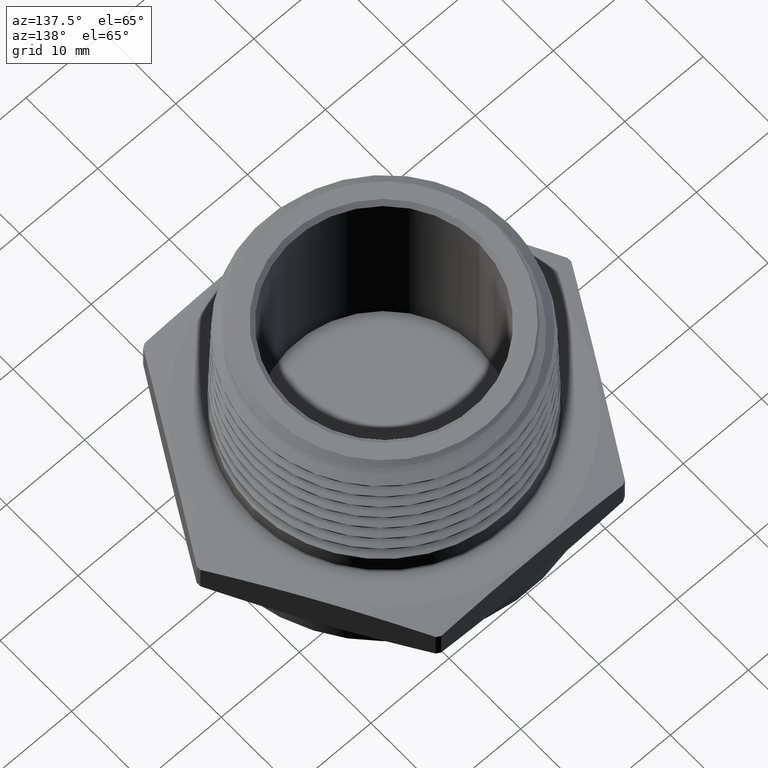
[diagram: clean part render]
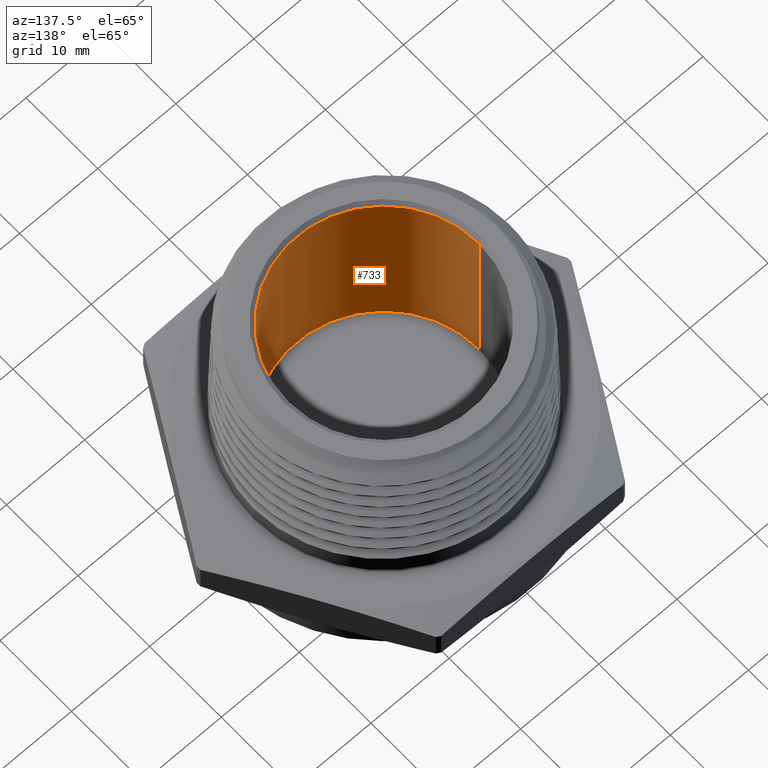
[diagram: same view with one face highlighted and labeled with its STEP entity id]
A machine part, auxiliary view. The second image highlights one B-rep face of the part: STEP entity #733.
In plain terms, the highlighted cylindrical surface (partial cylindrical patch) has radius 12.192 mm, axis along (-0, -0, -1).
Its self-contained STEP definition (entity closure, byte-faithful):
#733 = ADVANCED_FACE ( 'NONE', ( #5981 ), #5984, .F. ) ;
#745 = ORIENTED_EDGE ( 'NONE', *, *, #829, .T. ) ;
#748 = ORIENTED_EDGE ( 'NONE', *, *, #839, .F. ) ;
#749 = ORIENTED_EDGE ( 'NONE', *, *, #830, .T. ) ;
#751 = ORIENTED_EDGE ( 'NONE', *, *, #828, .F. ) ;
#828 = EDGE_CURVE ( 'NONE', #1591, #1569, #6057, .T. ) ;
#829 = EDGE_CURVE ( 'NONE', #2355, #1589, #6060, .T. ) ;
#830 = EDGE_CURVE ( 'NONE', #1589, #1569, #6061, .T. ) ;
#839 = EDGE_CURVE ( 'NONE', #2355, #1591, #6068, .T. ) ;
#977 = AXIS2_PLACEMENT_3D ( 'NONE', #1835, #1836, #1834 ) ;
#1016 = AXIS2_PLACEMENT_3D ( 'NONE', #4695, #4696, #4697 ) ;
#1386 = CARTESIAN_POINT ( 'NONE',  ( -0.4799999999999999800, 0.0000000000000000000, 0.04748031496062989100 ) ) ;
#1404 = CARTESIAN_POINT ( 'NONE',  ( 0.4799999999999999800, 5.878304635907294700E-017, 0.04748031496062989100 ) ) ;
#1406 = CARTESIAN_POINT ( 'NONE',  ( -0.4799999999999998700, 0.0000000000000000000, 0.9700000000000000800 ) ) ;
#1432 = CARTESIAN_POINT ( 'NONE',  ( 0.4799999999999999300, 5.878304635907294700E-017, 0.9700000000000000800 ) ) ;
#1569 = VERTEX_POINT ( 'NONE', #1386 ) ;
#1589 = VERTEX_POINT ( 'NONE', #1404 ) ;
#1591 = VERTEX_POINT ( 'NONE', #1406 ) ;
#1834 = DIRECTION ( 'NONE',  ( -1.000000000000000000, 0.0000000000000000000, 0.0000000000000000000 ) ) ;
#1835 = CARTESIAN_POINT ( 'NONE',  ( 2.449293598294655500E-018, 0.0000000000000000000, -0.1200000000000000000 ) ) ;
#1836 = DIRECTION ( 'NONE',  ( -0.0000000000000000000, -0.0000000000000000000, -1.000000000000000000 ) ) ;
#1992 = CARTESIAN_POINT ( 'NONE',  ( 2.449293598294655500E-018, 0.0000000000000000000, 0.9700000000000000800 ) ) ;
#1993 = DIRECTION ( 'NONE',  ( -0.0000000000000000000, -0.0000000000000000000, -1.000000000000000000 ) ) ;
#1994 = DIRECTION ( 'NONE',  ( -1.000000000000000000, 0.0000000000000000000, 0.0000000000000000000 ) ) ;
#2302 = AXIS2_PLACEMENT_3D ( 'NONE', #1992, #1993, #1994 ) ;
#2355 = VERTEX_POINT ( 'NONE', #1432 ) ;
#4369 = EDGE_LOOP ( 'NONE', ( #748, #745, #749, #751 ) ) ;
#4682 = DIRECTION ( 'NONE',  ( -0.0000000000000000000, -0.0000000000000000000, -1.000000000000000000 ) ) ;
#4687 = CARTESIAN_POINT ( 'NONE',  ( 0.4799999999999998200, 5.878304635907293500E-017, -0.1200000000000000000 ) ) ;
#4688 = CARTESIAN_POINT ( 'NONE',  ( -0.4799999999999998200, 0.0000000000000000000, -0.1200000000000000000 ) ) ;
#4693 = DIRECTION ( 'NONE',  ( -0.0000000000000000000, -0.0000000000000000000, -1.000000000000000000 ) ) ;
#4695 = CARTESIAN_POINT ( 'NONE',  ( 2.449293598294655500E-018, 0.0000000000000000000, 0.04748031496062989100 ) ) ;
#4696 = DIRECTION ( 'NONE',  ( -0.0000000000000000000, -0.0000000000000000000, -1.000000000000000000 ) ) ;
#4697 = DIRECTION ( 'NONE',  ( -1.000000000000000000, 0.0000000000000000000, 0.0000000000000000000 ) ) ;
#5981 = FACE_OUTER_BOUND ( 'NONE', #4369, .T. ) ;
#5984 = CYLINDRICAL_SURFACE ( 'NONE', #977, 0.4799999999999998200 ) ;
#6057 = LINE ( 'NONE', #4688, #6062 ) ;
#6060 = LINE ( 'NONE', #4687, #6064 ) ;
#6061 = CIRCLE ( 'NONE', #1016, 0.4799999999999999800 ) ;
#6062 = VECTOR ( 'NONE', #4682, 39.37007874015748100 ) ;
#6064 = VECTOR ( 'NONE', #4693, 39.37007874015748100 ) ;
#6068 = CIRCLE ( 'NONE', #2302, 0.4799999999999998700 ) ;